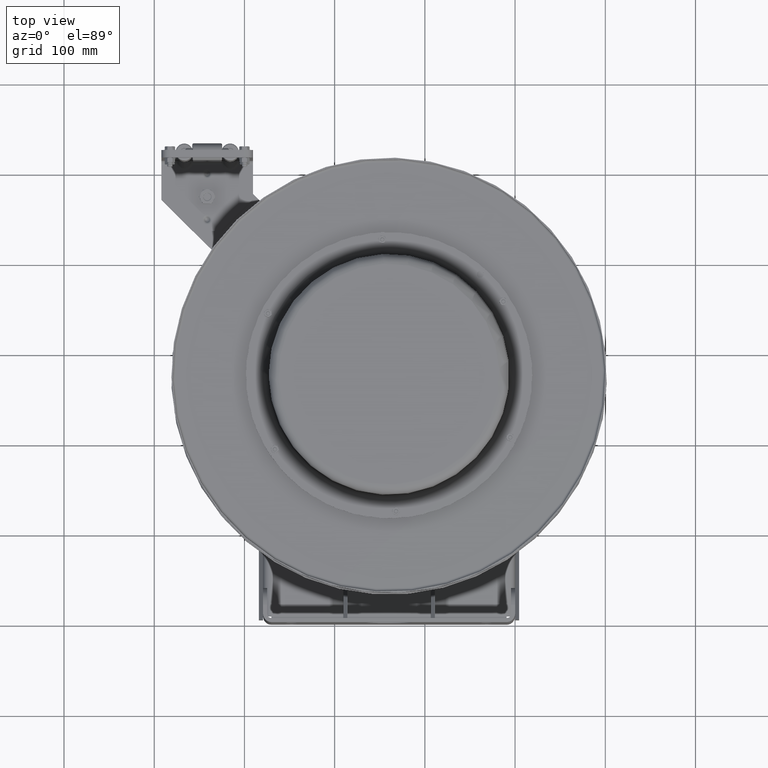
[diagram: clean part render]
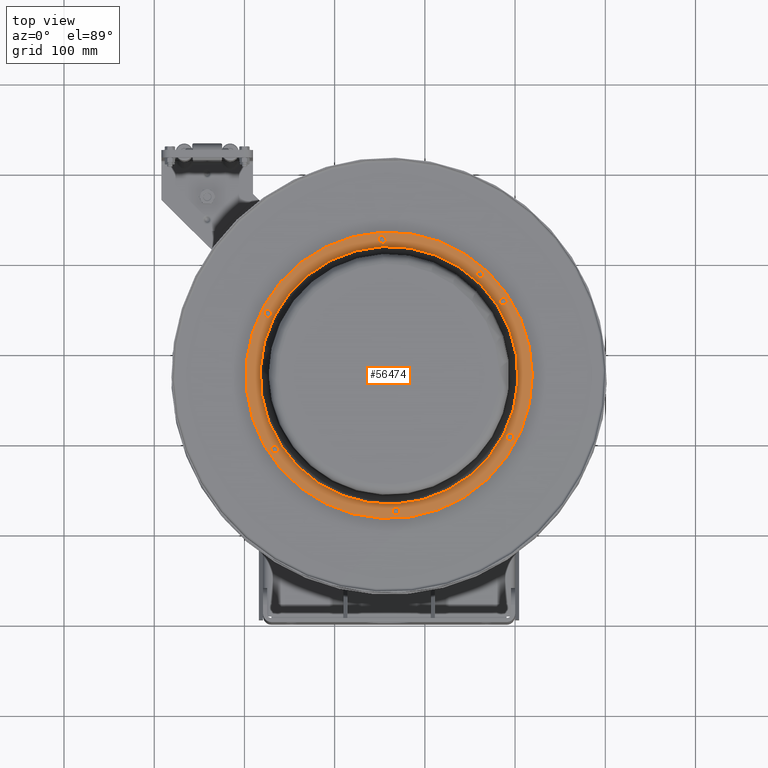
[diagram: same view with one face highlighted and labeled with its STEP entity id]
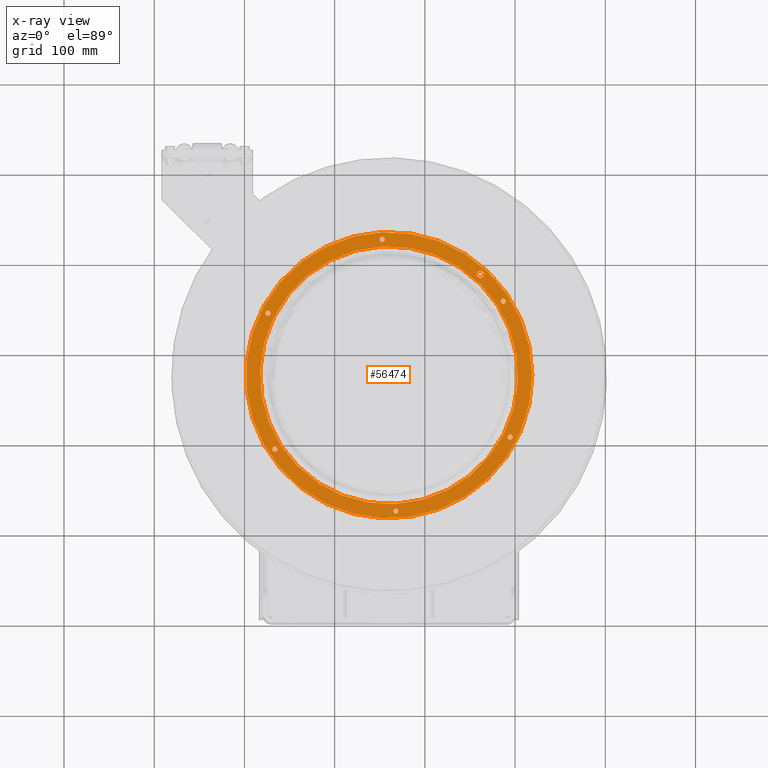
[diagram: x-ray of the same camera — body ghosted, the highlighted face saturated]
A machine part, top view. The second image highlights one B-rep face of the part: STEP entity #56474.
The next image is the same camera in x-ray: the body ghosted, the highlighted face saturated — about 0% of this face is hidden behind the body in this view.
In plain terms, the highlighted planar face has unit normal (0, 0, 1).
Its self-contained STEP definition (entity closure, byte-faithful):
#4301=PLANE('',#63208);
#10552=FACE_BOUND('',#18938,.T.);
#10553=FACE_BOUND('',#18939,.T.);
#10554=FACE_BOUND('',#18940,.T.);
#10555=FACE_BOUND('',#18941,.T.);
#10556=FACE_BOUND('',#18942,.T.);
#10557=FACE_BOUND('',#18943,.T.);
#10558=FACE_BOUND('',#18944,.T.);
#10559=FACE_BOUND('',#18945,.T.);
#14045=FACE_OUTER_BOUND('',#18937,.T.);
#18937=EDGE_LOOP('',(#48364));
#18938=EDGE_LOOP('',(#48365));
#18939=EDGE_LOOP('',(#48366));
#18940=EDGE_LOOP('',(#48367));
#18941=EDGE_LOOP('',(#48368));
#18942=EDGE_LOOP('',(#48369));
#18943=EDGE_LOOP('',(#48370));
#18944=EDGE_LOOP('',(#48371));
#18945=EDGE_LOOP('',(#48372));
#22029=CIRCLE('',#63180,0.155);
#22031=CIRCLE('',#63183,0.112);
#22033=CIRCLE('',#63186,0.112);
#22035=CIRCLE('',#63189,0.112);
#22037=CIRCLE('',#63192,0.112);
#22039=CIRCLE('',#63195,0.112);
#22041=CIRCLE('',#63198,0.112);
#22046=CIRCLE('',#63207,5.625);
#22047=CIRCLE('',#63209,6.25);
#26881=VERTEX_POINT('',#106283);
#26883=VERTEX_POINT('',#106288);
#26885=VERTEX_POINT('',#106293);
#26887=VERTEX_POINT('',#106298);
#26889=VERTEX_POINT('',#106303);
#26891=VERTEX_POINT('',#106308);
#26893=VERTEX_POINT('',#106313);
#26898=VERTEX_POINT('',#106327);
#26899=VERTEX_POINT('',#106330);
#34043=EDGE_CURVE('',#26881,#26881,#22029,.T.);
#34045=EDGE_CURVE('',#26883,#26883,#22031,.T.);
#34047=EDGE_CURVE('',#26885,#26885,#22033,.T.);
#34049=EDGE_CURVE('',#26887,#26887,#22035,.T.);
#34051=EDGE_CURVE('',#26889,#26889,#22037,.T.);
#34053=EDGE_CURVE('',#26891,#26891,#22039,.T.);
#34055=EDGE_CURVE('',#26893,#26893,#22041,.T.);
#34060=EDGE_CURVE('',#26898,#26898,#22046,.T.);
#34061=EDGE_CURVE('',#26899,#26899,#22047,.T.);
#48364=ORIENTED_EDGE('',*,*,#34061,.F.);
#48365=ORIENTED_EDGE('',*,*,#34043,.T.);
#48366=ORIENTED_EDGE('',*,*,#34045,.T.);
#48367=ORIENTED_EDGE('',*,*,#34047,.T.);
#48368=ORIENTED_EDGE('',*,*,#34049,.T.);
#48369=ORIENTED_EDGE('',*,*,#34051,.T.);
#48370=ORIENTED_EDGE('',*,*,#34053,.T.);
#48371=ORIENTED_EDGE('',*,*,#34055,.T.);
#48372=ORIENTED_EDGE('',*,*,#34060,.T.);
#56474=ADVANCED_FACE('',(#14045,#10552,#10553,#10554,#10555,#10556,#10557,
#10558,#10559),#4301,.T.);
#63180=AXIS2_PLACEMENT_3D('',#106284,#78691,#78692);
#63183=AXIS2_PLACEMENT_3D('',#106289,#78697,#78698);
#63186=AXIS2_PLACEMENT_3D('',#106294,#78703,#78704);
#63189=AXIS2_PLACEMENT_3D('',#106299,#78709,#78710);
#63192=AXIS2_PLACEMENT_3D('',#106304,#78715,#78716);
#63195=AXIS2_PLACEMENT_3D('',#106309,#78721,#78722);
#63198=AXIS2_PLACEMENT_3D('',#106314,#78727,#78728);
#63207=AXIS2_PLACEMENT_3D('',#106328,#78745,#78746);
#63208=AXIS2_PLACEMENT_3D('',#106329,#78747,#78748);
#63209=AXIS2_PLACEMENT_3D('',#106331,#78749,#78750);
#78691=DIRECTION('center_axis',(-2.19885032598496E-25,-6.03639979774278E-17,
-1.));
#78692=DIRECTION('ref_axis',(-0.998717063592292,-0.050638195955134,3.05672417781923E-18));
#78697=DIRECTION('center_axis',(-2.19885032598496E-25,-6.03639979774278E-17,
-1.));
#78698=DIRECTION('ref_axis',(-0.455504567697185,-0.890233446241491,5.37380500485185E-17));
#78703=DIRECTION('center_axis',(-2.19885032598496E-25,-6.03639979774278E-17,
-1.));
#78704=DIRECTION('ref_axis',(0.543212495895107,-0.839595250286356,5.06813258706992E-17));
#78709=DIRECTION('center_axis',(-2.19885032598496E-25,-6.03639979774278E-17,
-1.));
#78710=DIRECTION('ref_axis',(0.998717063592292,0.0506381959551341,-3.05672417781924E-18));
#78715=DIRECTION('center_axis',(-2.19885032598496E-25,-6.03639979774278E-17,
-1.));
#78716=DIRECTION('ref_axis',(0.455504567697185,0.89023344624149,-5.37380500485185E-17));
#78721=DIRECTION('center_axis',(-2.19885032598496E-25,-6.03639979774278E-17,
-1.));
#78722=DIRECTION('ref_axis',(-0.543212495895106,0.839595250286356,-5.06813258706993E-17));
#78727=DIRECTION('center_axis',(-2.19885032598496E-25,-6.03639979774278E-17,
-1.));
#78728=DIRECTION('ref_axis',(-0.998717063592292,-0.050638195955134,3.05672417781923E-18));
#78745=DIRECTION('center_axis',(-2.19885032598496E-25,-6.03639979774278E-17,
-1.));
#78746=DIRECTION('ref_axis',(-0.050638195955134,0.998717063592292,-6.02865547955731E-17));
#78747=DIRECTION('center_axis',(2.19885032598496E-25,6.03639979774278E-17,
1.));
#78748=DIRECTION('ref_axis',(0.998717063592292,0.050638195955132,0.));
#78749=DIRECTION('center_axis',(-2.19885032598496E-25,-6.03639979774278E-17,
-1.));
#78750=DIRECTION('ref_axis',(-0.050638195955134,0.998717063592292,-6.02865547955731E-17));
#106283=CARTESIAN_POINT('',(-1.36474043898318,15.1635108510278,8.26179999999999));
#106284=CARTESIAN_POINT('Origin',(-1.51954158383998,15.1556619306548,8.26179999999999));
#106288=CARTESIAN_POINT('',(-10.7347445754768,13.5542645166811,8.26179999999999));
#106289=CARTESIAN_POINT('Origin',(-10.7857610870589,13.454558370702,8.26179999999999));
#106293=CARTESIAN_POINT('',(-10.5459365981155,7.61871047365488,8.26179999999999));
#106294=CARTESIAN_POINT('Origin',(-10.4850967985752,7.5246758056228,8.26179999999999));
#106298=CARTESIAN_POINT('',(-5.31119202263873,4.81444595697379,8.26179999999999));
#106299=CARTESIAN_POINT('Origin',(-5.19933571151639,4.82011743492077,8.26179999999999));
#106303=CARTESIAN_POINT('',(-0.265255424523236,7.94573548331892,8.26179999999999));
#106304=CARTESIAN_POINT('Origin',(-0.21423891294115,8.04544162929796,8.26179999999999));
#106308=CARTESIAN_POINT('',(-0.454063401884509,13.8812895263451,8.26179999999999));
#106309=CARTESIAN_POINT('Origin',(-0.51490320142476,13.9753241943772,8.26179999999999));
#106313=CARTESIAN_POINT('',(-5.68880797736127,16.6855540430262,8.26179999999999));
#106314=CARTESIAN_POINT('Origin',(-5.80066428848361,16.6798825650792,8.26179999999999));
#106327=CARTESIAN_POINT('',(-5.78483985224763,16.3677834827066,8.26179999999999));
#106328=CARTESIAN_POINT('Origin',(-5.5,10.75,8.26179999999999));
#106329=CARTESIAN_POINT('Origin',(-5.80066428848361,16.6798825650792,8.26179999999999));
#106330=CARTESIAN_POINT('',(-5.81648872471959,16.9919816474518,8.26179999999999));
#106331=CARTESIAN_POINT('Origin',(-5.5,10.75,8.26179999999999));